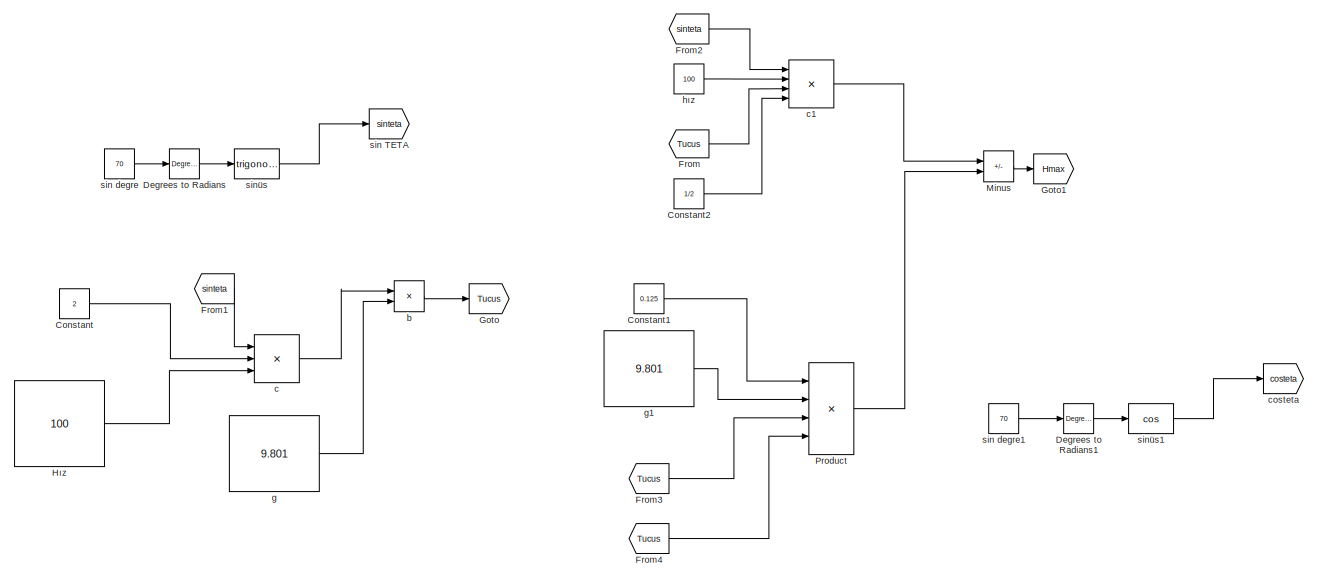
[diagram: root canvas - part 1/6, top left region]
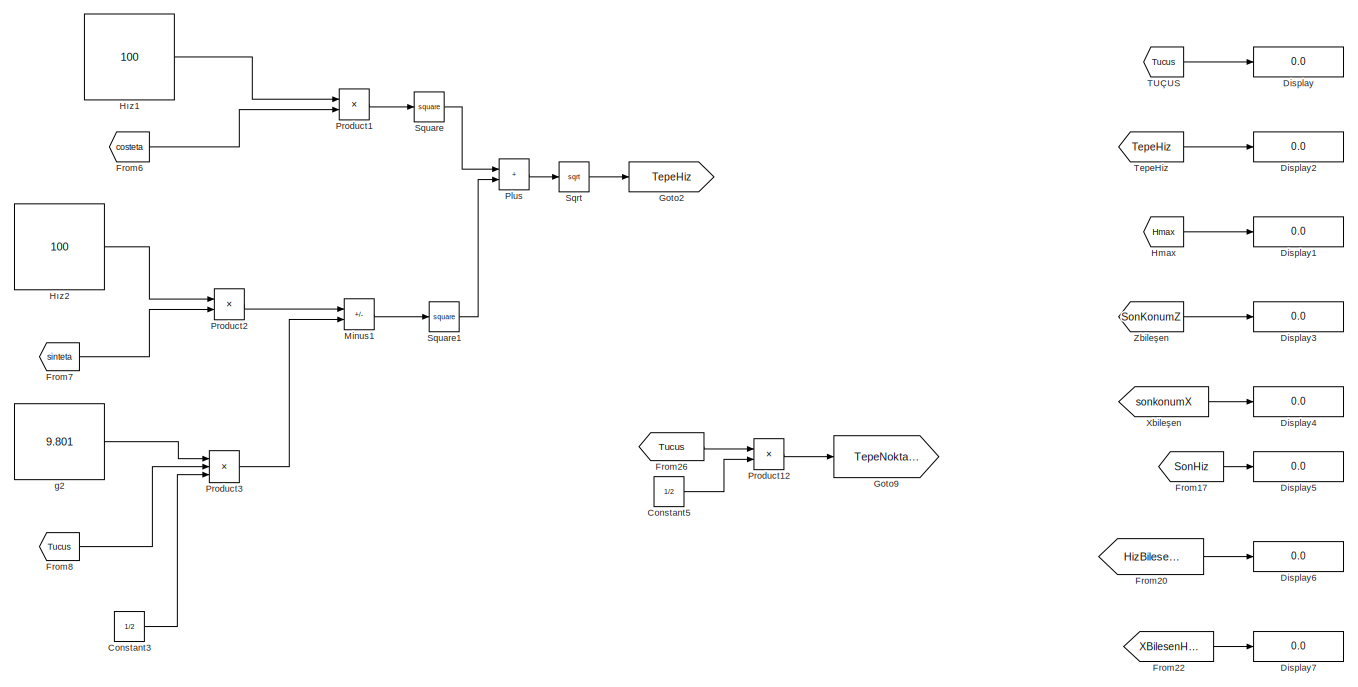
[diagram: root canvas - part 2/6, top right region]
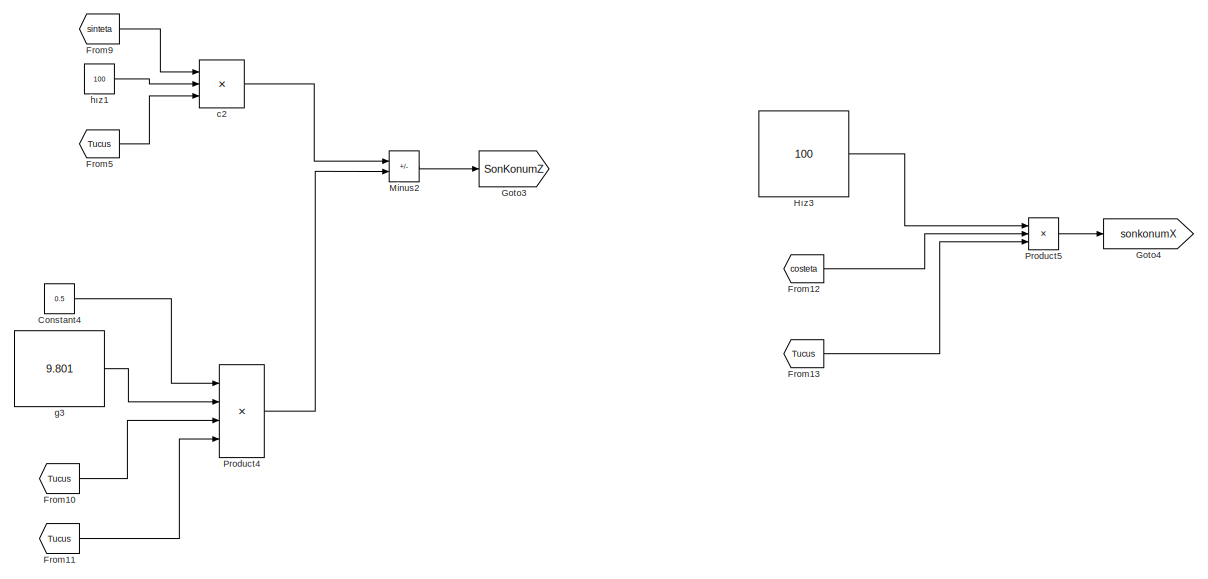
[diagram: root canvas - part 3/6, middle left region]
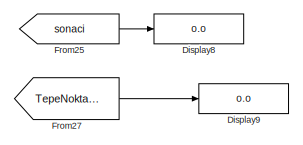
[diagram: root canvas - part 4/6, middle right region]
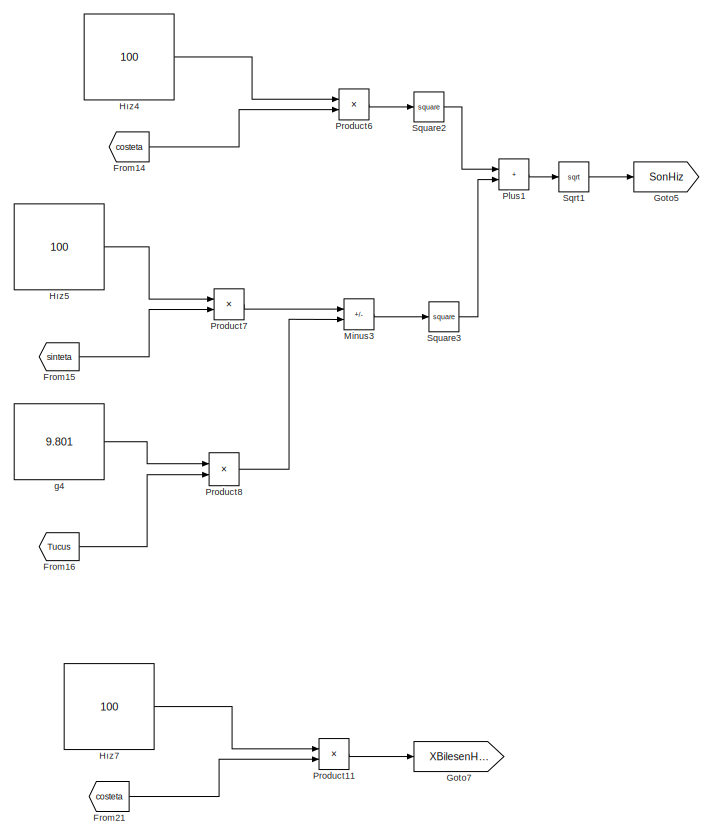
[diagram: root canvas - part 5/6, central region]
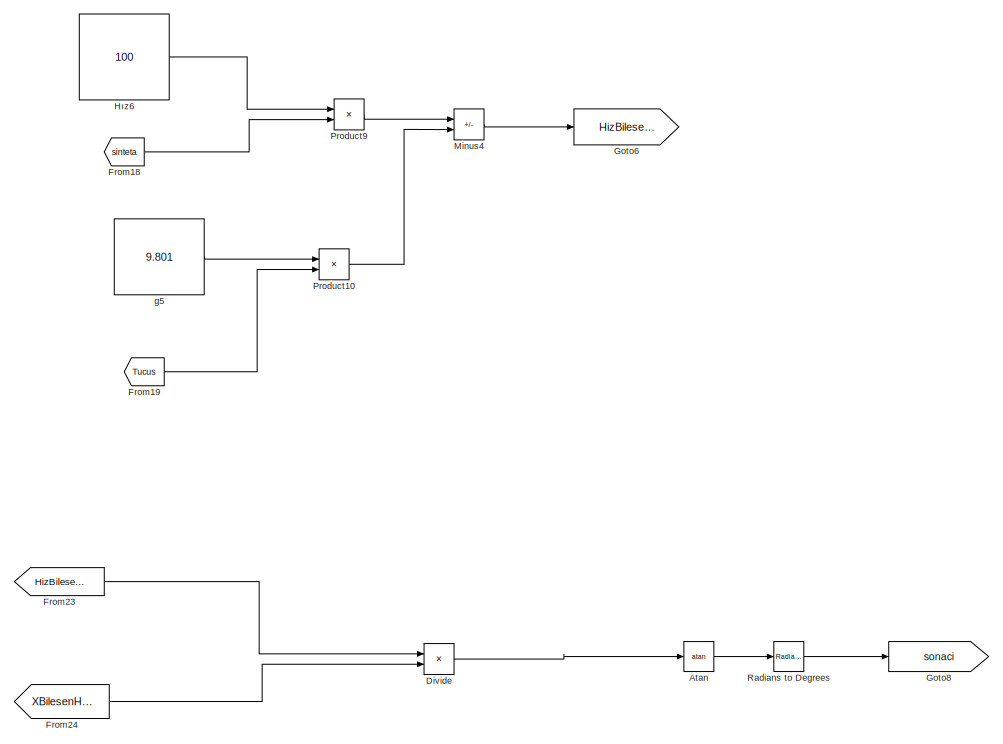
[diagram: root canvas - part 6/6, bottom left region]
MODEL slx_f65f5dac6ba3
KIND model
CONFIG AbsTol = auto
CONFIG EnableMultiTasking = off
CONFIG FixedStep = auto
CONFIG MaxStep = auto
CONFIG MinStep = auto
CONFIG RelTol = 1e-3
CONFIG SampleTimeConstraint = Unconstrained
CONFIG SolverName = VariableStepAuto
CONFIG StartTime = 0.0
CONFIG StopTime = 10.0
BLOCK [Trigonometry] Atan
  Operator = atan
BLOCK [Constant] Constant
  Value = 2
BLOCK [Constant] Constant1
  Value = 0.125
BLOCK [Constant] Constant2
  Value = 1/2
BLOCK [Constant] Constant3
  Value = 1/2
BLOCK [Constant] Constant4
  Value = 0.5
BLOCK [Constant] Constant5
  Value = 1/2
BLOCK [Reference] Degrees to Radians  REF=simulink_extras/Transformations/Degrees to
Radians
  SourceBlock = simulink_extras/Transformations/Degrees to\nRadians
  SourceType = DegreesToRadians
BLOCK [Reference] Degrees to Radians1  REF=simulink_extras/Transformations/Degrees to
Radians
  SourceBlock = simulink_extras/Transformations/Degrees to\nRadians
  SourceType = DegreesToRadians
BLOCK [Display] Display
  Decimation = 1
BLOCK [Display] Display1
  Decimation = 1
BLOCK [Display] Display2
  Decimation = 1
BLOCK [Display] Display3
  Decimation = 1
BLOCK [Display] Display4
  Decimation = 1
BLOCK [Display] Display5
  Decimation = 1
BLOCK [Display] Display6
  Decimation = 1
BLOCK [Display] Display7
  Decimation = 1
BLOCK [Display] Display8
  Decimation = 1
BLOCK [Display] Display9
  Decimation = 1
BLOCK [Product] Divide
  Inputs = */
BLOCK [From] From
  GotoTag = Tucus
BLOCK [From] From1
  GotoTag = sinteta
BLOCK [From] From10
  GotoTag = Tucus
BLOCK [From] From11
  GotoTag = Tucus
BLOCK [From] From12
  GotoTag = costeta
BLOCK [From] From13
  GotoTag = Tucus
BLOCK [From] From14
  GotoTag = costeta
BLOCK [From] From15
  GotoTag = sinteta
BLOCK [From] From16
  GotoTag = Tucus
BLOCK [From] From17
  GotoTag = SonHiz
BLOCK [From] From18
  GotoTag = sinteta
BLOCK [From] From19
  GotoTag = Tucus
BLOCK [From] From2
  GotoTag = sinteta
BLOCK [From] From20
  GotoTag = HizBilesenY
BLOCK [From] From21
  GotoTag = costeta
BLOCK [From] From22
  GotoTag = XBilesenHiz
BLOCK [From] From23
  GotoTag = HizBilesenY
BLOCK [From] From24
  GotoTag = XBilesenHiz
BLOCK [From] From25
  GotoTag = sonaci
BLOCK [From] From26
  GotoTag = Tucus
BLOCK [From] From27
  GotoTag = TepeNoktasiZamani
BLOCK [From] From3
  GotoTag = Tucus
BLOCK [From] From4
  GotoTag = Tucus
BLOCK [From] From5
  GotoTag = Tucus
BLOCK [From] From6
  GotoTag = costeta
BLOCK [From] From7
  GotoTag = sinteta
BLOCK [From] From8
  GotoTag = Tucus
BLOCK [From] From9
  GotoTag = sinteta
BLOCK [Goto] Goto
  GotoTag = Tucus
BLOCK [Goto] Goto1
  GotoTag = Hmax
BLOCK [Goto] Goto2
  GotoTag = TepeHiz
BLOCK [Goto] Goto3
  GotoTag = SonKonumZ
BLOCK [Goto] Goto4
  GotoTag = sonkonumX
BLOCK [Goto] Goto5
  GotoTag = SonHiz
BLOCK [Goto] Goto6
  GotoTag = HizBilesenY
BLOCK [Goto] Goto7
  GotoTag = XBilesenHiz
BLOCK [Goto] Goto8
  GotoTag = sonaci
BLOCK [Goto] Goto9
  GotoTag = TepeNoktasiZamani
BLOCK [From] Hmax
  GotoTag = Hmax
BLOCK [Constant] Hız
  Value = 100
BLOCK [Constant] Hız1
  Value = 100
BLOCK [Constant] Hız2
  Value = 100
BLOCK [Constant] Hız3
  Value = 100
BLOCK [Constant] Hız4
  Value = 100
BLOCK [Constant] Hız5
  Value = 100
BLOCK [Constant] Hız6
  Value = 100
BLOCK [Constant] Hız7
  Value = 100
BLOCK [Sum] Minus
  IconShape = rectangular
  Inputs = +-
BLOCK [Sum] Minus1
  IconShape = rectangular
  Inputs = +-
BLOCK [Sum] Minus2
  IconShape = rectangular
  Inputs = +-
BLOCK [Sum] Minus3
  IconShape = rectangular
  Inputs = +-
BLOCK [Sum] Minus4
  IconShape = rectangular
  Inputs = +-
BLOCK [Sum] Plus
  IconShape = rectangular
BLOCK [Sum] Plus1
  IconShape = rectangular
BLOCK [Product] Product
  Inputs = 4
BLOCK [Product] Product1
BLOCK [Product] Product10
BLOCK [Product] Product11
BLOCK [Product] Product12
BLOCK [Product] Product2
BLOCK [Product] Product3
  Inputs = 3
BLOCK [Product] Product4
  Inputs = 4
BLOCK [Product] Product5
  Inputs = 3
BLOCK [Product] Product6
BLOCK [Product] Product7
BLOCK [Product] Product8
BLOCK [Product] Product9
BLOCK [Reference] Radians to Degrees  REF=simulink_extras/Transformations/Radians
to Degrees
  SourceBlock = simulink_extras/Transformations/Radians\nto Degrees
  SourceType = RadiansToDegrees
BLOCK [Sqrt] Sqrt
BLOCK [Sqrt] Sqrt1
BLOCK [Math] Square
  Operator = square
  RndMeth = Zero
  SignedPower = on
BLOCK [Math] Square1
  Operator = square
  RndMeth = Zero
  SignedPower = on
BLOCK [Math] Square2
  Operator = square
  RndMeth = Zero
  SignedPower = on
BLOCK [Math] Square3
  Operator = square
  RndMeth = Zero
  SignedPower = on
BLOCK [From] TUÇUS
  GotoTag = Tucus
BLOCK [From] TepeHiz
  GotoTag = TepeHiz
BLOCK [From] Xbileşen
  GotoTag = sonkonumX
BLOCK [From] Zbileşen
  GotoTag = SonKonumZ
BLOCK [Product] b
  Inputs = */
BLOCK [Product] c
  Inputs = 3
BLOCK [Product] c1
  Inputs = 4
BLOCK [Product] c2
  Inputs = 3
BLOCK [Goto] costeta
  GotoTag = costeta
BLOCK [Constant] g
  Value = 9.801
BLOCK [Constant] g1
  Value = 9.801
BLOCK [Constant] g2
  Value = 9.801
BLOCK [Constant] g3
  Value = 9.801
BLOCK [Constant] g4
  Value = 9.801
BLOCK [Constant] g5
  Value = 9.801
BLOCK [Constant] hız
  Value = 100
BLOCK [Constant] hız1
  Value = 100
BLOCK [Goto] sin TETA
  GotoTag = sinteta
BLOCK [Constant] sin degre
  Value = 70
BLOCK [Constant] sin degre1
  Value = 70
BLOCK [Trigonometry] sinüs
BLOCK [Trigonometry] sinüs1
  Operator = cos
LINE Atan:1 -> Radians to Degrees:1
LINE Constant1:1 -> Product:1
LINE Constant2:1 -> c1:4
LINE Constant3:1 -> Product3:3
LINE Constant4:1 -> Product4:1
LINE Constant5:1 -> Product12:2
LINE Constant:1 -> c:2
LINE Degrees to Radians1:1 -> sinüs1:1
LINE Degrees to Radians:1 -> sinüs:1
LINE Divide:1 -> Atan:1
LINE From10:1 -> Product4:3
LINE From11:1 -> Product4:4
LINE From12:1 -> Product5:2
LINE From13:1 -> Product5:3
LINE From14:1 -> Product6:2
LINE From15:1 -> Product7:2
LINE From16:1 -> Product8:2
LINE From17:1 -> Display5:1
LINE From18:1 -> Product9:2
LINE From19:1 -> Product10:2
LINE From1:1 -> c:1
LINE From20:1 -> Display6:1
LINE From21:1 -> Product11:2
LINE From22:1 -> Display7:1
LINE From23:1 -> Divide:1
LINE From24:1 -> Divide:2
LINE From25:1 -> Display8:1
LINE From26:1 -> Product12:1
LINE From27:1 -> Display9:1
LINE From2:1 -> c1:1
LINE From3:1 -> Product:3
LINE From4:1 -> Product:4
LINE From5:1 -> c2:3
LINE From6:1 -> Product1:2
LINE From7:1 -> Product2:2
LINE From8:1 -> Product3:2
LINE From9:1 -> c2:1
LINE From:1 -> c1:3
LINE Hmax:1 -> Display1:1
LINE Hız1:1 -> Product1:1
LINE Hız2:1 -> Product2:1
LINE Hız3:1 -> Product5:1
LINE Hız4:1 -> Product6:1
LINE Hız5:1 -> Product7:1
LINE Hız6:1 -> Product9:1
LINE Hız7:1 -> Product11:1
LINE Hız:1 -> c:3
LINE Minus1:1 -> Square1:1
LINE Minus2:1 -> Goto3:1
LINE Minus3:1 -> Square3:1
LINE Minus4:1 -> Goto6:1
LINE Minus:1 -> Goto1:1
LINE Plus1:1 -> Sqrt1:1
LINE Plus:1 -> Sqrt:1
LINE Product10:1 -> Minus4:2
LINE Product11:1 -> Goto7:1
LINE Product12:1 -> Goto9:1
LINE Product1:1 -> Square:1
LINE Product2:1 -> Minus1:1
LINE Product3:1 -> Minus1:2
LINE Product4:1 -> Minus2:2
LINE Product5:1 -> Goto4:1
LINE Product6:1 -> Square2:1
LINE Product7:1 -> Minus3:1
LINE Product8:1 -> Minus3:2
LINE Product9:1 -> Minus4:1
LINE Product:1 -> Minus:2
LINE Radians to Degrees:1 -> Goto8:1
LINE Sqrt1:1 -> Goto5:1
LINE Sqrt:1 -> Goto2:1
LINE Square1:1 -> Plus:2
LINE Square2:1 -> Plus1:1
LINE Square3:1 -> Plus1:2
LINE Square:1 -> Plus:1
LINE TUÇUS:1 -> Display:1
LINE TepeHiz:1 -> Display2:1
LINE Xbileşen:1 -> Display4:1
LINE Zbileşen:1 -> Display3:1
LINE b:1 -> Goto:1
LINE c1:1 -> Minus:1
LINE c2:1 -> Minus2:1
LINE c:1 -> b:1
LINE g1:1 -> Product:2
LINE g2:1 -> Product3:1
LINE g3:1 -> Product4:2
LINE g4:1 -> Product8:1
LINE g5:1 -> Product10:1
LINE g:1 -> b:2
LINE hız1:1 -> c2:2
LINE hız:1 -> c1:2
LINE sin degre1:1 -> Degrees to Radians1:1
LINE sin degre:1 -> Degrees to Radians:1
LINE sinüs1:1 -> costeta:1
LINE sinüs:1 -> sin TETA:1
